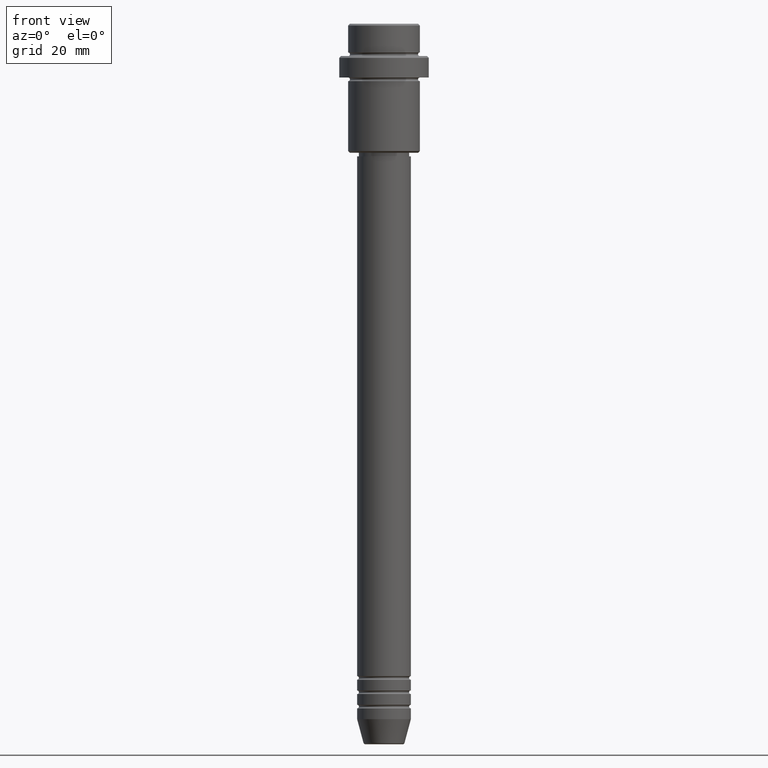
[diagram: clean part render]
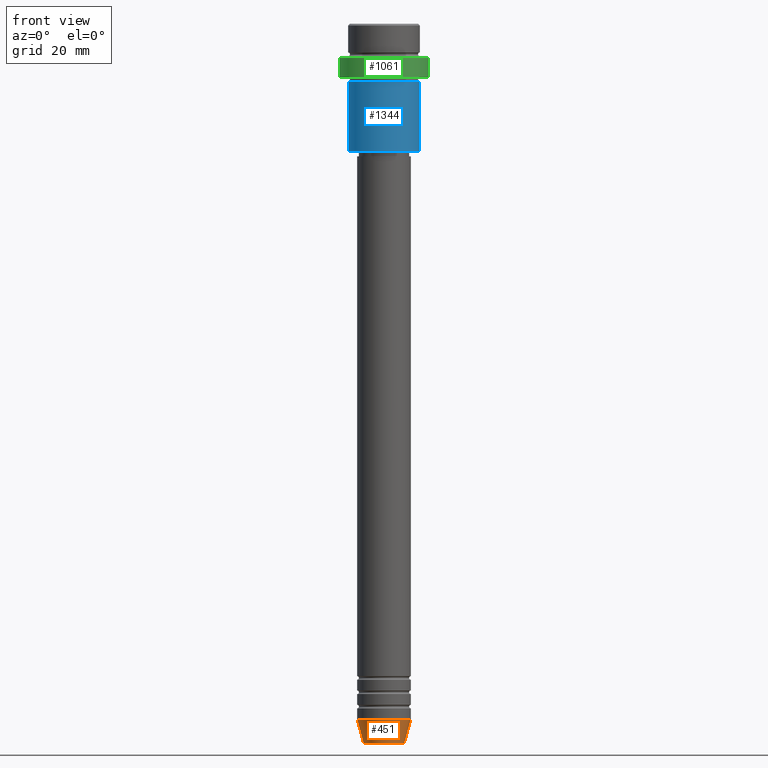
[diagram: same view with three faces highlighted in distinct colors, each labeled with its STEP entity id]
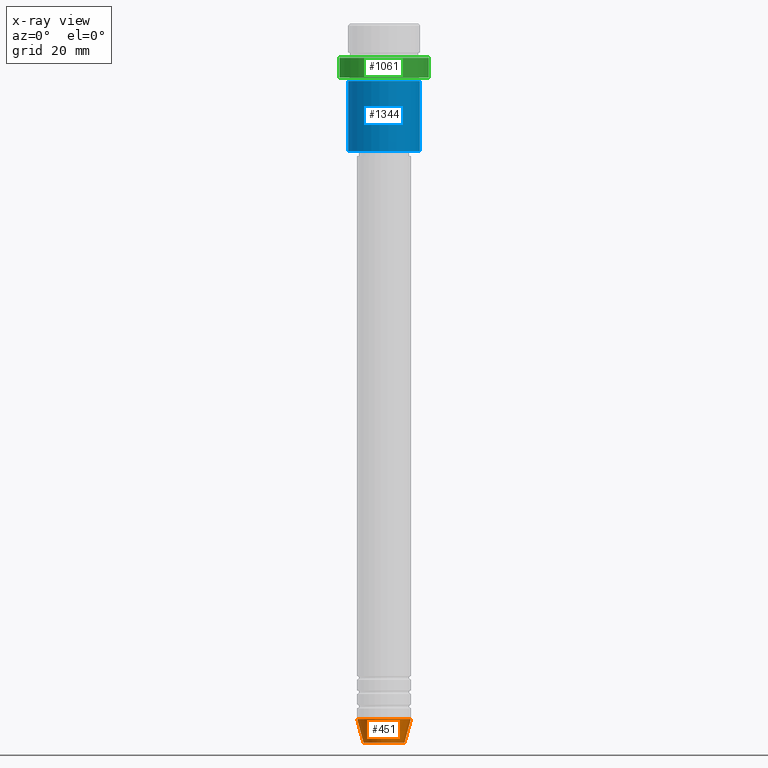
[diagram: x-ray of the same camera — body ghosted, the three highlighted faces saturated]
A machine part, front view with three faces highlighted in distinct colors.
The next image is the same camera in x-ray (body ghosted, the three faces saturated) — at least one of them is partly hidden behind the body in this view.
Their STEP definitions:

[orange] entity #451 — the highlighted conical surface has half-angle 15 deg.
#1 = CARTESIAN_POINT ( 'NONE',  ( 0.000000000000000000, 0.000000000000000000, -200.6294095225512706 ) ) ;
#27 = LINE ( 'NONE', #571, #445 ) ;
#63 = VERTEX_POINT ( 'NONE', #608 ) ;
#77 = AXIS2_PLACEMENT_3D ( 'NONE', #1125, #1006, #573 ) ;
#145 = CONICAL_SURFACE ( 'NONE', #77, 7.500000000000000000, 0.2617993877991500740 ) ;
#168 = DIRECTION ( 'NONE',  ( -0.000000000000000000, -0.000000000000000000, 1.000000000000000000 ) ) ;
#190 = LINE ( 'NONE', #1395, #950 ) ;
#241 = CIRCLE ( 'NONE', #1143, 7.500000000000000000 ) ;
#405 = CARTESIAN_POINT ( 'NONE',  ( 5.723655072137191269, 0.000000000000000000, -200.6294095225512706 ) ) ;
#445 = VECTOR ( 'NONE', #1011, 1000.000000000000000 ) ;
#451 = ADVANCED_FACE ( 'NONE', ( #916 ), #145, .T. ) ;
#459 = DIRECTION ( 'NONE',  ( -0.000000000000000000, -0.000000000000000000, 1.000000000000000000 ) ) ;
#571 = CARTESIAN_POINT ( 'NONE',  ( -7.500000000000000000, 9.184850993605147944E-16, -194.0000000000000000 ) ) ;
#573 = DIRECTION ( 'NONE',  ( 1.000000000000000000, 0.000000000000000000, 0.000000000000000000 ) ) ;
#608 = CARTESIAN_POINT ( 'NONE',  ( 7.500000000000000000, 0.000000000000000000, -194.0000000000000000 ) ) ;
#626 = DIRECTION ( 'NONE',  ( 0.2588190451025213501, 0.000000000000000000, 0.9659258262890680902 ) ) ;
#636 = EDGE_LOOP ( 'NONE', ( #1271, #966, #1396, #704 ) ) ;
#704 = ORIENTED_EDGE ( 'NONE', *, *, #976, .F. ) ;
#778 = EDGE_CURVE ( 'NONE', #1064, #1148, #27, .T. ) ;
#779 = DIRECTION ( 'NONE',  ( 1.000000000000000000, 0.000000000000000000, 0.000000000000000000 ) ) ;
#794 = AXIS2_PLACEMENT_3D ( 'NONE', #1, #459, #779 ) ;
#871 = CARTESIAN_POINT ( 'NONE',  ( -7.500000000000000000, 9.184850993605147944E-16, -194.0000000000000000 ) ) ;
#916 = FACE_OUTER_BOUND ( 'NONE', #636, .T. ) ;
#950 = VECTOR ( 'NONE', #626, 1000.000000000000000 ) ;
#966 = ORIENTED_EDGE ( 'NONE', *, *, #1301, .T. ) ;
#976 = EDGE_CURVE ( 'NONE', #1148, #63, #241, .T. ) ;
#1006 = DIRECTION ( 'NONE',  ( -0.000000000000000000, -0.000000000000000000, 1.000000000000000000 ) ) ;
#1011 = DIRECTION ( 'NONE',  ( -0.2588190451025213501, 3.169619151431772337E-17, 0.9659258262890680902 ) ) ;
#1047 = CIRCLE ( 'NONE', #794, 5.723655072137191269 ) ;
#1064 = VERTEX_POINT ( 'NONE', #1176 ) ;
#1125 = CARTESIAN_POINT ( 'NONE',  ( 0.000000000000000000, 0.000000000000000000, -194.0000000000000000 ) ) ;
#1126 = VERTEX_POINT ( 'NONE', #405 ) ;
#1143 = AXIS2_PLACEMENT_3D ( 'NONE', #1172, #168, #1155 ) ;
#1148 = VERTEX_POINT ( 'NONE', #871 ) ;
#1155 = DIRECTION ( 'NONE',  ( 1.000000000000000000, 0.000000000000000000, 0.000000000000000000 ) ) ;
#1172 = CARTESIAN_POINT ( 'NONE',  ( 0.000000000000000000, 0.000000000000000000, -194.0000000000000000 ) ) ;
#1176 = CARTESIAN_POINT ( 'NONE',  ( -5.723655072137191269, 8.097153428560735915E-16, -200.6294095225512706 ) ) ;
#1189 = EDGE_CURVE ( 'NONE', #1126, #63, #190, .T. ) ;
#1271 = ORIENTED_EDGE ( 'NONE', *, *, #778, .F. ) ;
#1301 = EDGE_CURVE ( 'NONE', #1064, #1126, #1047, .T. ) ;
#1395 = CARTESIAN_POINT ( 'NONE',  ( 7.500000000000000000, 0.000000000000000000, -194.0000000000000000 ) ) ;
#1396 = ORIENTED_EDGE ( 'NONE', *, *, #1189, .T. ) ;

[blue] entity #1344 — the highlighted cylindrical surface (edge-blend (fillet) strip) has radius 10 mm, axis along (-0, -0, 1).
#3 = ORIENTED_EDGE ( 'NONE', *, *, #812, .T. ) ;
#112 = CARTESIAN_POINT ( 'NONE',  ( 9.999999999999998224, 0.000000000000000000, 0.000000000000000000 ) ) ;
#179 = CARTESIAN_POINT ( 'NONE',  ( 9.999999999999998224, 0.000000000000000000, -35.49999999999995026 ) ) ;
#206 = CARTESIAN_POINT ( 'NONE',  ( -9.999999999999998224, 1.224646799147353059E-15, -16.00000000000000000 ) ) ;
#228 = DIRECTION ( 'NONE',  ( 1.000000000000000000, 0.000000000000000000, 0.000000000000000000 ) ) ;
#250 = CARTESIAN_POINT ( 'NONE',  ( 0.000000000000000000, 0.000000000000000000, -16.00000000000000000 ) ) ;
#265 = CARTESIAN_POINT ( 'NONE',  ( -9.999999999999998224, 1.224646799147353059E-15, 0.000000000000000000 ) ) ;
#439 = DIRECTION ( 'NONE',  ( -0.000000000000000000, -0.000000000000000000, 1.000000000000000000 ) ) ;
#454 = CYLINDRICAL_SURFACE ( 'NONE', #1074, 9.999999999999998224 ) ;
#470 = DIRECTION ( 'NONE',  ( -1.000000000000000000, 0.000000000000000000, 0.000000000000000000 ) ) ;
#479 = EDGE_LOOP ( 'NONE', ( #1129, #3, #1104, #725 ) ) ;
#543 = DIRECTION ( 'NONE',  ( -0.000000000000000000, -0.000000000000000000, 1.000000000000000000 ) ) ;
#548 = CARTESIAN_POINT ( 'NONE',  ( 9.999999999999998224, 0.000000000000000000, -16.00000000000000000 ) ) ;
#552 = AXIS2_PLACEMENT_3D ( 'NONE', #1005, #439, #470 ) ;
#595 = LINE ( 'NONE', #265, #630 ) ;
#601 = CIRCLE ( 'NONE', #1383, 9.999999999999998224 ) ;
#630 = VECTOR ( 'NONE', #1149, 1000.000000000000000 ) ;
#658 = LINE ( 'NONE', #112, #1070 ) ;
#676 = VERTEX_POINT ( 'NONE', #206 ) ;
#725 = ORIENTED_EDGE ( 'NONE', *, *, #848, .F. ) ;
#744 = EDGE_CURVE ( 'NONE', #1037, #793, #658, .T. ) ;
#775 = DIRECTION ( 'NONE',  ( 1.000000000000000000, 0.000000000000000000, 0.000000000000000000 ) ) ;
#793 = VERTEX_POINT ( 'NONE', #548 ) ;
#812 = EDGE_CURVE ( 'NONE', #1308, #1037, #1186, .T. ) ;
#848 = EDGE_CURVE ( 'NONE', #676, #793, #601, .T. ) ;
#982 = EDGE_CURVE ( 'NONE', #1308, #676, #595, .T. ) ;
#1005 = CARTESIAN_POINT ( 'NONE',  ( 0.000000000000000000, 0.000000000000000000, -35.49999999999995026 ) ) ;
#1037 = VERTEX_POINT ( 'NONE', #179 ) ;
#1070 = VECTOR ( 'NONE', #543, 1000.000000000000000 ) ;
#1074 = AXIS2_PLACEMENT_3D ( 'NONE', #1320, #1215, #228 ) ;
#1104 = ORIENTED_EDGE ( 'NONE', *, *, #744, .T. ) ;
#1129 = ORIENTED_EDGE ( 'NONE', *, *, #982, .F. ) ;
#1149 = DIRECTION ( 'NONE',  ( -0.000000000000000000, -0.000000000000000000, 1.000000000000000000 ) ) ;
#1186 = CIRCLE ( 'NONE', #552, 9.999999999999998224 ) ;
#1215 = DIRECTION ( 'NONE',  ( -0.000000000000000000, -0.000000000000000000, 1.000000000000000000 ) ) ;
#1223 = FACE_OUTER_BOUND ( 'NONE', #479, .T. ) ;
#1238 = CARTESIAN_POINT ( 'NONE',  ( -9.999999999999998224, 1.224646799147353059E-15, -35.49999999999995026 ) ) ;
#1308 = VERTEX_POINT ( 'NONE', #1238 ) ;
#1317 = DIRECTION ( 'NONE',  ( -0.000000000000000000, -0.000000000000000000, 1.000000000000000000 ) ) ;
#1320 = CARTESIAN_POINT ( 'NONE',  ( 0.000000000000000000, 0.000000000000000000, 0.000000000000000000 ) ) ;
#1344 = ADVANCED_FACE ( 'NONE', ( #1223 ), #454, .T. ) ;
#1383 = AXIS2_PLACEMENT_3D ( 'NONE', #250, #1317, #775 ) ;

[green] entity #1061 — the highlighted cylindrical surface (partial cylindrical patch) has radius 12.5 mm, axis along (-0, -0, 1).
#12 = AXIS2_PLACEMENT_3D ( 'NONE', #970, #1411, #428 ) ;
#17 = VERTEX_POINT ( 'NONE', #351 ) ;
#57 = CIRCLE ( 'NONE', #553, 12.50000000000000000 ) ;
#68 = DIRECTION ( 'NONE',  ( -0.000000000000000000, -0.000000000000000000, 1.000000000000000000 ) ) ;
#69 = DIRECTION ( 'NONE',  ( -0.000000000000000000, -0.000000000000000000, 1.000000000000000000 ) ) ;
#157 = DIRECTION ( 'NONE',  ( 0.000000000000000000, 0.000000000000000000, -1.000000000000000000 ) ) ;
#169 = VECTOR ( 'NONE', #1413, 1000.000000000000000 ) ;
#174 = AXIS2_PLACEMENT_3D ( 'NONE', #1058, #68, #734 ) ;
#196 = CARTESIAN_POINT ( 'NONE',  ( -12.50000000000000000, 1.530808498934191521E-15, 0.000000000000000000 ) ) ;
#220 = CIRCLE ( 'NONE', #12, 12.50000000000000000 ) ;
#251 = EDGE_CURVE ( 'NONE', #1023, #556, #870, .T. ) ;
#291 = CYLINDRICAL_SURFACE ( 'NONE', #174, 12.50000000000000000 ) ;
#351 = CARTESIAN_POINT ( 'NONE',  ( 12.50000000000000000, 0.000000000000000000, -9.499999999999976907 ) ) ;
#428 = DIRECTION ( 'NONE',  ( 1.000000000000000000, 0.000000000000000000, 0.000000000000000000 ) ) ;
#489 = FACE_OUTER_BOUND ( 'NONE', #1135, .T. ) ;
#509 = CARTESIAN_POINT ( 'NONE',  ( -12.50000000000000000, 1.530808498934191521E-15, -9.499999999999976907 ) ) ;
#553 = AXIS2_PLACEMENT_3D ( 'NONE', #1051, #157, #710 ) ;
#556 = VERTEX_POINT ( 'NONE', #509 ) ;
#607 = EDGE_CURVE ( 'NONE', #853, #17, #1178, .T. ) ;
#613 = CARTESIAN_POINT ( 'NONE',  ( 12.50000000000000000, 0.000000000000000000, 0.000000000000000000 ) ) ;
#710 = DIRECTION ( 'NONE',  ( 1.000000000000000000, 0.000000000000000000, 0.000000000000000000 ) ) ;
#734 = DIRECTION ( 'NONE',  ( 1.000000000000000000, 0.000000000000000000, 0.000000000000000000 ) ) ;
#853 = VERTEX_POINT ( 'NONE', #1217 ) ;
#870 = LINE ( 'NONE', #196, #169 ) ;
#896 = ORIENTED_EDGE ( 'NONE', *, *, #1019, .T. ) ;
#947 = ORIENTED_EDGE ( 'NONE', *, *, #251, .F. ) ;
#970 = CARTESIAN_POINT ( 'NONE',  ( 0.000000000000000000, 0.000000000000000000, -15.00000000000000000 ) ) ;
#1019 = EDGE_CURVE ( 'NONE', #17, #556, #57, .T. ) ;
#1023 = VERTEX_POINT ( 'NONE', #1272 ) ;
#1034 = ORIENTED_EDGE ( 'NONE', *, *, #1180, .T. ) ;
#1051 = CARTESIAN_POINT ( 'NONE',  ( 0.000000000000000000, 0.000000000000000000, -9.499999999999976907 ) ) ;
#1058 = CARTESIAN_POINT ( 'NONE',  ( 0.000000000000000000, 0.000000000000000000, 0.000000000000000000 ) ) ;
#1061 = ADVANCED_FACE ( 'NONE', ( #489 ), #291, .T. ) ;
#1135 = EDGE_LOOP ( 'NONE', ( #947, #1034, #1177, #896 ) ) ;
#1142 = VECTOR ( 'NONE', #69, 1000.000000000000000 ) ;
#1177 = ORIENTED_EDGE ( 'NONE', *, *, #607, .T. ) ;
#1178 = LINE ( 'NONE', #613, #1142 ) ;
#1180 = EDGE_CURVE ( 'NONE', #1023, #853, #220, .T. ) ;
#1217 = CARTESIAN_POINT ( 'NONE',  ( 12.50000000000000000, 0.000000000000000000, -15.00000000000000000 ) ) ;
#1272 = CARTESIAN_POINT ( 'NONE',  ( -12.50000000000000000, 1.530808498934191521E-15, -15.00000000000000000 ) ) ;
#1411 = DIRECTION ( 'NONE',  ( -0.000000000000000000, -0.000000000000000000, 1.000000000000000000 ) ) ;
#1413 = DIRECTION ( 'NONE',  ( -0.000000000000000000, -0.000000000000000000, 1.000000000000000000 ) ) ;